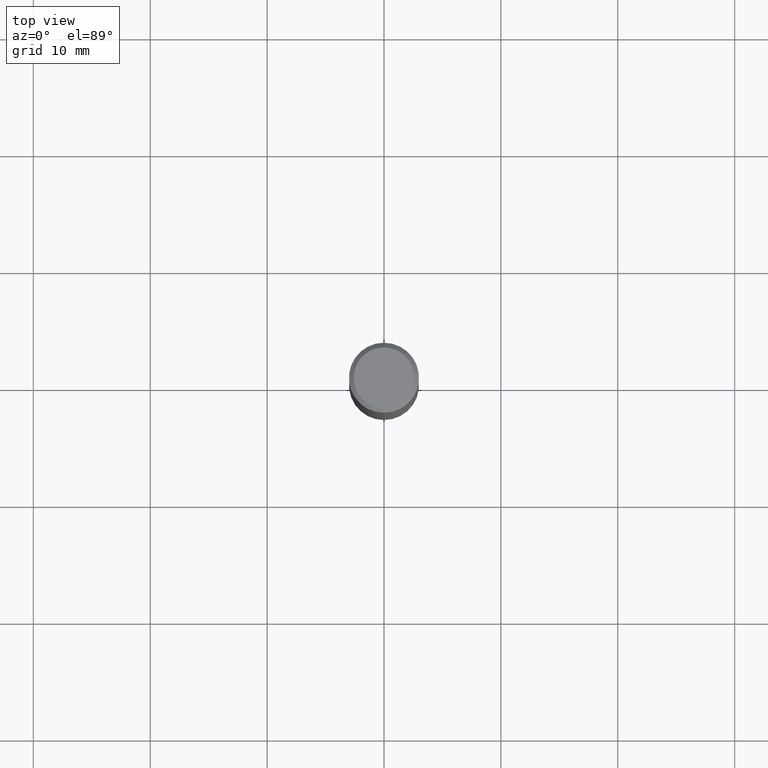
[diagram: clean part render]
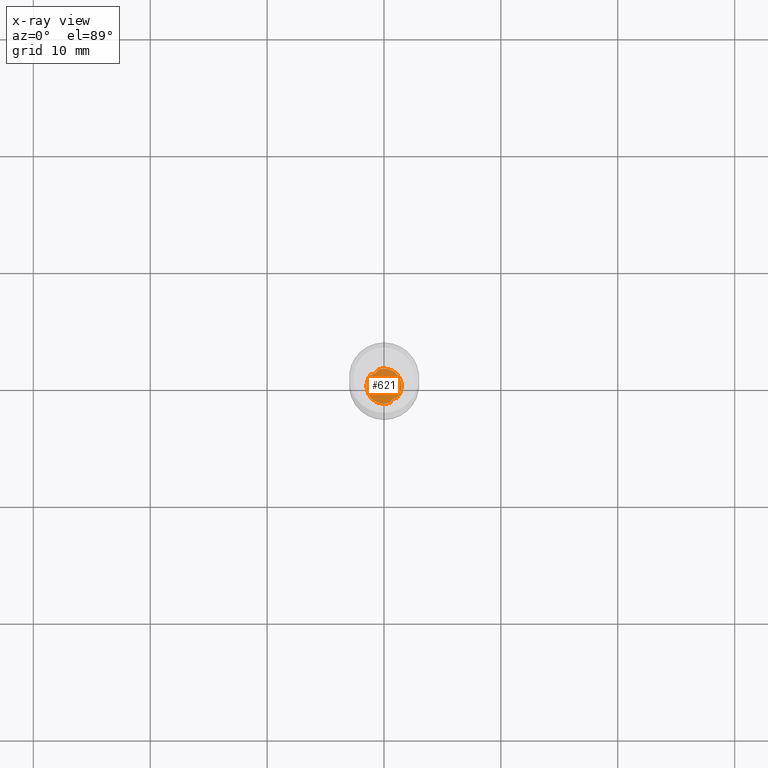
[diagram: x-ray — body ghosted, one internal face saturated and labeled with its STEP entity id]
A machine part, top view, then the same camera in x-ray: the body is ghosted and one INTERNAL B-rep face — a face not visible from any outside direction — is saturated and labeled: STEP entity #621.
In plain terms, the highlighted planar face has unit normal (-0, 0, 1).
Its self-contained STEP definition (entity closure, byte-faithful):
#343=VERTEX_POINT('',#854);
#375=VERTEX_POINT('',#890);
#385=EDGE_CURVE('',#755,#445,#901,.T.);
#413=EDGE_CURVE('',#343,#559,#930,.T.);
#445=VERTEX_POINT('',#965);
#535=EDGE_CURVE('',#563,#755,#1066,.T.);
#559=VERTEX_POINT('',#1094);
#563=VERTEX_POINT('',#1098);
#621=ADVANCED_FACE('',(#1160),#1161,.T.);
#649=EDGE_CURVE('',#563,#375,#1192,.T.);
#705=EDGE_CURVE('',#343,#445,#1252,.T.);
#715=EDGE_CURVE('',#559,#375,#1263,.T.);
#755=VERTEX_POINT('',#1308);
#854=CARTESIAN_POINT('',(0.514623852241509,-1.40885141186149,-42.0));
#890=CARTESIAN_POINT('',(-1.13471156562166,0.980882089164868,-42.0));
#901=CIRCLE('',#2303,1.4999);
#930=CIRCLE('',#2454,1.4999);
#965=CARTESIAN_POINT('',(1.13471156562167,-0.980882089164865,-42.0));
#1066=CIRCLE('',#3529,1.4999);
#1094=CARTESIAN_POINT('',(1.83671011612172E-016,-1.4999,-42.0));
#1098=CARTESIAN_POINT('',(-0.514623852241509,1.40885141186149,-42.0));
#1160=FACE_OUTER_BOUND('',#4210,.T.);
#1161=PLANE('',#4211);
#1192=B_SPLINE_CURVE_WITH_KNOTS('',3,(#4383,#4384,#4385,#4386,#4387,#4388,#4389,#4390,#4391,#4392,#4393,#4394),.UNSPECIFIED.,.F.,.F.,(4,2,2,2,2,4),(0.0,0.331093797592654,0.63092698923024,0.929263989683759,1.14463136029472,1.37065767775549),.UNSPECIFIED.);
#1252=B_SPLINE_CURVE_WITH_KNOTS('',3,(#4581,#4582,#4583,#4584,#4585,#4586,#4587,#4588,#4589,#4590,#4591,#4592),.UNSPECIFIED.,.F.,.F.,(4,2,2,2,2,4),(0.0,0.331093797592713,0.630926989230391,0.929263989683943,1.14463136029484,1.37065767775562),.UNSPECIFIED.);
#1263=CIRCLE('',#4686,1.4999);
#1308=CARTESIAN_POINT('',(-1.83672705121253E-016,1.4999,-42.0));
#2303=AXIS2_PLACEMENT_3D('',#5399,#5400,#5401);
#2454=AXIS2_PLACEMENT_3D('',#5418,#5419,#5420);
#3529=AXIS2_PLACEMENT_3D('',#5574,#5575,#5576);
#4210=EDGE_LOOP('',(#5674,#5675,#5676,#5677,#5678,#5679));
#4211=AXIS2_PLACEMENT_3D('',#5680,#5681,#5682);
#4383=CARTESIAN_POINT('',(-0.46014533062942,1.5499,-42.0));
#4384=CARTESIAN_POINT('',(-0.49103639490159,1.44394677020417,-42.0));
#4385=CARTESIAN_POINT('',(-0.54048922555601,1.34504374554103,-41.999999999994));
#4386=CARTESIAN_POINT('',(-0.672172908335003,1.18169774414141,-41.999999999994));
#4387=CARTESIAN_POINT('',(-0.748646077450905,1.1177322965547,-42.0000000000003));
#4388=CARTESIAN_POINT('',(-0.923542852486969,1.02321321501924,-42.0000000000003));
#4389=CARTESIAN_POINT('',(-1.01869065301778,0.994192134498866,-42.0));
#4390=CARTESIAN_POINT('',(-1.18845276442371,0.974444581066462,-42.0));
#4391=CARTESIAN_POINT('',(-1.26034725488353,0.975429621219235,-42.0));
#4392=CARTESIAN_POINT('',(-1.40606980361989,0.994320791610412,-42.0));
#4393=CARTESIAN_POINT('',(-1.4793113692484,1.01298802843828,-42.0));
#4394=CARTESIAN_POINT('',(-1.5499,1.0391980411705,-42.0));
#4581=CARTESIAN_POINT('',(0.460145330629415,-1.5499,-42.0));
#4582=CARTESIAN_POINT('',(0.49103639490159,-1.44394677020415,-42.0));
#4583=CARTESIAN_POINT('',(0.540489225556013,-1.34504374554102,-41.999999999994));
#4584=CARTESIAN_POINT('',(0.672172908335004,-1.1816977441414,-41.999999999994));
#4585=CARTESIAN_POINT('',(0.748646077450905,-1.11773229655469,-42.0000000000003));
#4586=CARTESIAN_POINT('',(0.923542852486946,-1.02321321501925,-42.0000000000003));
#4587=CARTESIAN_POINT('',(1.01869065301772,-0.994192134498863,-42.0));
#4588=CARTESIAN_POINT('',(1.18845276442369,-0.974444581066453,-42.0));
#4589=CARTESIAN_POINT('',(1.26034725488352,-0.975429621219226,-42.0));
#4590=CARTESIAN_POINT('',(1.4060698036199,-0.994320791610406,-42.0));
#4591=CARTESIAN_POINT('',(1.47931136924844,-1.0129880284383,-42.0));
#4592=CARTESIAN_POINT('',(1.5499,-1.0391980411705,-42.0));
#4686=AXIS2_PLACEMENT_3D('',#5818,#5819,#5820);
#5399=CARTESIAN_POINT('',(0.0,0.0,-42.0));
#5400=DIRECTION('',(0.0,0.0,-1.0));
#5401=DIRECTION('',(0.0,1.0,0.0));
#5418=CARTESIAN_POINT('',(0.0,0.0,-42.0));
#5419=DIRECTION('',(0.0,0.0,-1.0));
#5420=DIRECTION('',(0.0,1.0,0.0));
#5574=CARTESIAN_POINT('',(0.0,0.0,-42.0));
#5575=DIRECTION('',(0.0,0.0,-1.0));
#5576=DIRECTION('',(0.0,1.0,0.0));
#5674=ORIENTED_EDGE('',*,*,#705,.T.);
#5675=ORIENTED_EDGE('',*,*,#385,.F.);
#5676=ORIENTED_EDGE('',*,*,#535,.F.);
#5677=ORIENTED_EDGE('',*,*,#649,.T.);
#5678=ORIENTED_EDGE('',*,*,#715,.F.);
#5679=ORIENTED_EDGE('',*,*,#413,.F.);
#5680=CARTESIAN_POINT('',(0.0,0.74995,-42.0));
#5681=DIRECTION('',(-0.0,0.0,1.0));
#5682=DIRECTION('',(0.0,-1.0,0.0));
#5818=CARTESIAN_POINT('',(0.0,0.0,-42.0));
#5819=DIRECTION('',(0.0,0.0,-1.0));
#5820=DIRECTION('',(0.0,1.0,0.0));